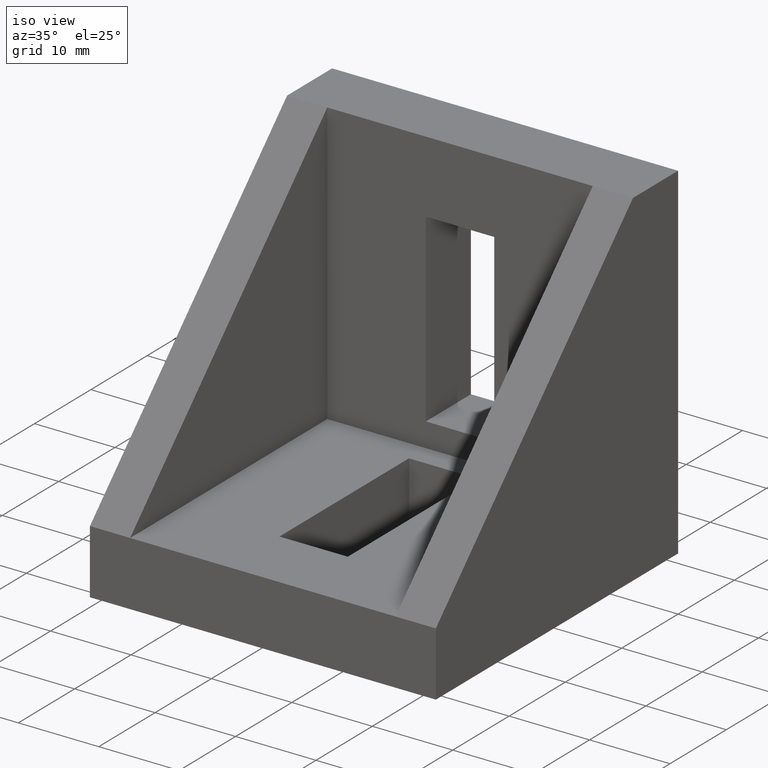
[diagram: clean part render]
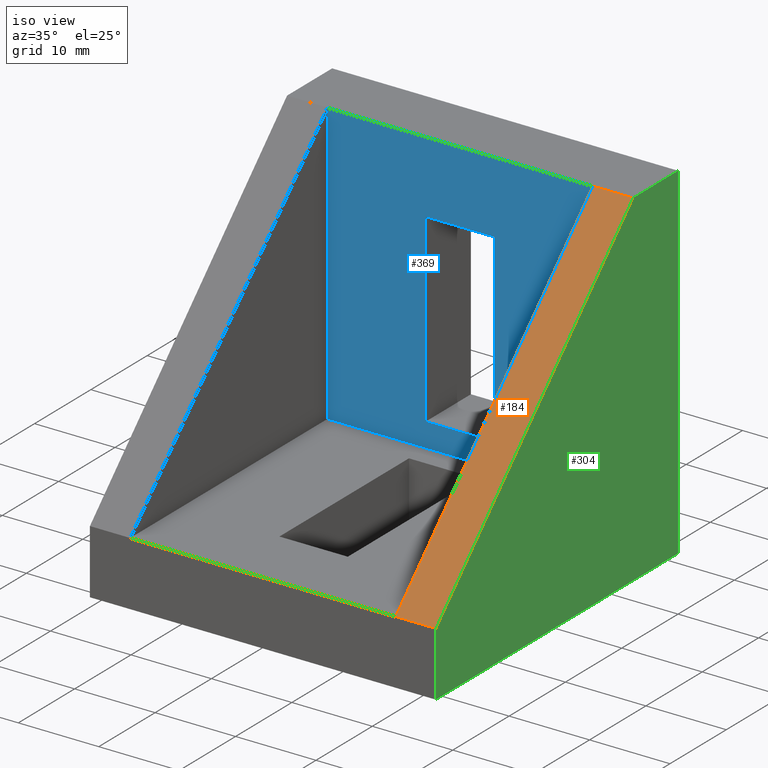
[diagram: same view with three faces highlighted in distinct colors, each labeled with its STEP entity id]
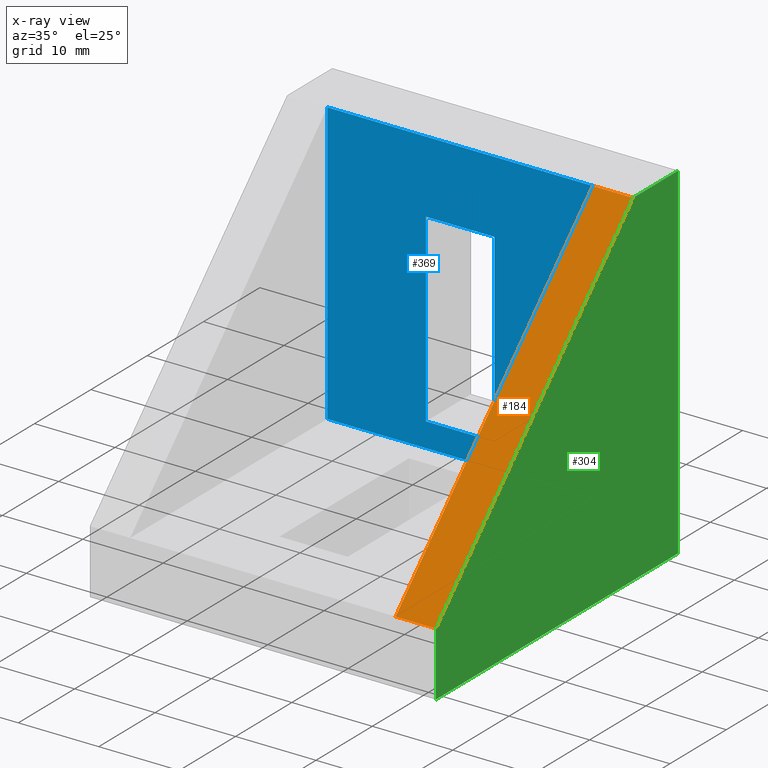
[diagram: x-ray of the same camera — body ghosted, the three highlighted faces saturated]
A machine part, iso view with three faces highlighted in distinct colors.
The next image is the same camera in x-ray (body ghosted, the three faces saturated) — at least one of them is partly hidden behind the body in this view.
Their STEP definitions:

[orange] entity #184 — the highlighted planar face has unit normal (-0, 0.7071, -0.7071).
#82=CARTESIAN_POINT('',(43.000000206304527,-42.999999999827978,7.999998335251010));
#83=VERTEX_POINT('',#82);
#90=CARTESIAN_POINT('',(37.999999859088902,-42.999999999827978,7.999998464298865));
#91=VERTEX_POINT('',#90);
#92=CARTESIAN_POINT('',(37.999999859088902,-42.999999999827978,7.999998464298865));
#93=DIRECTION('',(1.000000000000000,0.0,-0.000000025809569));
#94=VECTOR('',#93,5.000000347215627);
#95=LINE('',#92,#94);
#96=EDGE_CURVE('',#91,#83,#95,.T.);
#154=CARTESIAN_POINT('',(0.000000206476568,-42.999999999827985,7.999999445062490));
#155=DIRECTION('',(-0.000000018250122,0.707106781186547,-0.707106781186548));
#156=DIRECTION('',(0.000000018250122,0.707106781186548,0.707106781186547));
#157=AXIS2_PLACEMENT_3D('',#154,#155,#156);
#158=PLANE('',#157);
#159=CARTESIAN_POINT('',(43.000001109639449,-7.999999999968051,42.999998335110874));
#160=VERTEX_POINT('',#159);
#161=CARTESIAN_POINT('',(43.000000206304520,-42.999999999827985,7.999998335251014));
#162=DIRECTION('',(0.000000018250122,0.707106781186548,0.707106781186547));
#163=VECTOR('',#162,49.497474682860201);
#164=LINE('',#161,#163);
#165=EDGE_CURVE('',#83,#160,#164,.T.);
#166=ORIENTED_EDGE('',*,*,#165,.T.);
#167=CARTESIAN_POINT('',(38.000000762423824,-7.999999999968052,42.999998464158729));
#168=VERTEX_POINT('',#167);
#169=CARTESIAN_POINT('',(38.000000762423824,-7.999999999968052,42.999998464158729));
#170=DIRECTION('',(1.000000000000000,1.776357E-016,-0.000000025809569));
#171=VECTOR('',#170,5.000000347215627);
#172=LINE('',#169,#171);
#173=EDGE_CURVE('',#168,#160,#172,.T.);
#174=ORIENTED_EDGE('',*,*,#173,.F.);
#175=CARTESIAN_POINT('',(37.999999859088902,-42.999999999827978,7.999998464298865));
#176=DIRECTION('',(0.000000018250122,0.707106781186548,0.707106781186547));
#177=VECTOR('',#176,49.497474682860201);
#178=LINE('',#175,#177);
#179=EDGE_CURVE('',#91,#168,#178,.T.);
#180=ORIENTED_EDGE('',*,*,#179,.F.);
#181=ORIENTED_EDGE('',*,*,#96,.T.);
#182=EDGE_LOOP('',(#166,#174,#180,#181));
#183=FACE_OUTER_BOUND('',#182,.T.);
#184=ADVANCED_FACE('',(#183),#158,.F.);

[blue] entity #369 — the highlighted planar face has unit normal (0, 1, 0).
#129=CARTESIAN_POINT('',(5.000000762555938,-7.999999999968056,42.999999315874504));
#130=VERTEX_POINT('',#129);
#167=CARTESIAN_POINT('',(38.000000762423824,-7.999999999968052,42.999998464158729));
#168=VERTEX_POINT('',#167);
#191=CARTESIAN_POINT('',(5.000000762555938,-7.999999999968056,42.999999315874511));
#192=DIRECTION('',(1.000000000000000,1.076580E-016,-0.000000025809569));
#193=VECTOR('',#192,32.999999999867896);
#194=LINE('',#191,#193);
#195=EDGE_CURVE('',#130,#168,#194,.T.);
#305=CARTESIAN_POINT('',(4.999999859221006,-7.999999999968056,7.999999316014500));
#306=DIRECTION('',(0.0,1.0,0.0));
#307=DIRECTION('',(0.000000025809569,0.0,1.000000000000000));
#308=AXIS2_PLACEMENT_3D('',#305,#306,#307);
#309=PLANE('',#308);
#310=CARTESIAN_POINT('',(4.999999859221006,-7.999999999968056,7.999999316014500));
#311=VERTEX_POINT('',#310);
#312=CARTESIAN_POINT('',(37.999999859088895,-7.999999999968052,7.999998464298708));
#313=VERTEX_POINT('',#312);
#314=CARTESIAN_POINT('',(4.999999859221006,-7.999999999968056,7.999999316014500));
#315=DIRECTION('',(1.000000000000000,1.345725E-016,-0.000000025809569));
#316=VECTOR('',#315,32.999999999867896);
#317=LINE('',#314,#316);
#318=EDGE_CURVE('',#311,#313,#317,.T.);
#319=ORIENTED_EDGE('',*,*,#318,.T.);
#320=CARTESIAN_POINT('',(37.999999859088895,-7.999999999968052,7.999998464298713));
#321=DIRECTION('',(0.000000025809569,0.0,1.000000000000000));
#322=VECTOR('',#321,34.999999999860030);
#323=LINE('',#320,#322);
#324=EDGE_CURVE('',#313,#168,#323,.T.);
#325=ORIENTED_EDGE('',*,*,#324,.T.);
#326=ORIENTED_EDGE('',*,*,#195,.F.);
#327=CARTESIAN_POINT('',(4.999999859221005,-7.999999999968056,7.999999316014502));
#328=DIRECTION('',(0.000000025809569,0.0,1.000000000000000));
#329=VECTOR('',#328,34.999999999860016);
#330=LINE('',#327,#329);
#331=EDGE_CURVE('',#311,#130,#330,.T.);
#332=ORIENTED_EDGE('',*,*,#331,.F.);
#333=EDGE_LOOP('',(#319,#325,#326,#332));
#334=FACE_OUTER_BOUND('',#333,.T.);
#335=CARTESIAN_POINT('',(25.750000504377017,-7.999999999967879,33.999998780362084));
#336=VERTEX_POINT('',#335);
#337=CARTESIAN_POINT('',(25.749999910756920,-7.999999999967880,10.999998780453950));
#338=VERTEX_POINT('',#337);
#339=CARTESIAN_POINT('',(25.750000504377017,-7.999999999967879,33.999998780362084));
#340=DIRECTION('',(-0.000000025809569,0.0,-1.000000000000000));
#341=VECTOR('',#340,22.999999999908141);
#342=LINE('',#339,#341);
#343=EDGE_CURVE('',#336,#338,#342,.T.);
#344=ORIENTED_EDGE('',*,*,#343,.T.);
#345=CARTESIAN_POINT('',(17.249999910790972,-7.999999999967882,10.999998999835292));
#346=VERTEX_POINT('',#345);
#347=CARTESIAN_POINT('',(17.249999910790972,-7.999999999967882,10.999998999835292));
#348=DIRECTION('',(1.000000000000000,1.044916E-016,-0.000000025809570));
#349=VECTOR('',#348,8.499999999965951);
#350=LINE('',#347,#349);
#351=EDGE_CURVE('',#346,#338,#350,.T.);
#352=ORIENTED_EDGE('',*,*,#351,.F.);
#353=CARTESIAN_POINT('',(17.250000504411069,-7.999999999967881,33.999998999743426));
#354=VERTEX_POINT('',#353);
#355=CARTESIAN_POINT('',(17.250000504411069,-7.999999999967881,33.999998999743426));
#356=DIRECTION('',(-0.000000025809569,0.0,-1.000000000000000));
#357=VECTOR('',#356,22.999999999908141);
#358=LINE('',#355,#357);
#359=EDGE_CURVE('',#354,#346,#358,.T.);
#360=ORIENTED_EDGE('',*,*,#359,.F.);
#361=CARTESIAN_POINT('',(17.250000504411069,-7.999999999967881,33.999998999743426));
#362=DIRECTION('',(1.000000000000000,1.044916E-016,-0.000000025809570));
#363=VECTOR('',#362,8.499999999965951);
#364=LINE('',#361,#363);
#365=EDGE_CURVE('',#354,#336,#364,.T.);
#366=ORIENTED_EDGE('',*,*,#365,.T.);
#367=EDGE_LOOP('',(#344,#352,#360,#366));
#368=FACE_BOUND('',#367,.T.);
#369=ADVANCED_FACE('',(#334,#368),#309,.F.);

[green] entity #304 — the highlighted planar face has unit normal (-1, -0, 0).
#9=CARTESIAN_POINT('',(42.999999999827985,5.947641E-014,-0.000001109811490));
#10=VERTEX_POINT('',#9);
#17=CARTESIAN_POINT('',(42.999999999827992,-42.999999999827985,-0.000001109811481));
#18=VERTEX_POINT('',#17);
#19=CARTESIAN_POINT('',(42.999999999827985,6.394885E-014,-0.000001109811490));
#20=DIRECTION('',(0.0,-1.0,0.0));
#21=VECTOR('',#20,42.999999999828049);
#22=LINE('',#19,#21);
#23=EDGE_CURVE('',#10,#18,#22,.T.);
#82=CARTESIAN_POINT('',(43.000000206304527,-42.999999999827978,7.999998335251010));
#83=VERTEX_POINT('',#82);
#84=CARTESIAN_POINT('',(42.999999999827992,-42.999999999827985,-0.000001109811481));
#85=DIRECTION('',(0.000000025809569,0.0,1.000000000000000));
#86=VECTOR('',#85,7.999999445062485);
#87=LINE('',#84,#86);
#88=EDGE_CURVE('',#18,#83,#87,.T.);
#159=CARTESIAN_POINT('',(43.000001109639449,-7.999999999968051,42.999998335110874));
#160=VERTEX_POINT('',#159);
#161=CARTESIAN_POINT('',(43.000000206304520,-42.999999999827985,7.999998335251014));
#162=DIRECTION('',(0.000000018250122,0.707106781186548,0.707106781186547));
#163=VECTOR('',#162,49.497474682860201);
#164=LINE('',#161,#163);
#165=EDGE_CURVE('',#83,#160,#164,.T.);
#198=CARTESIAN_POINT('',(43.000001109639456,6.566211E-014,42.999998335110853));
#199=VERTEX_POINT('',#198);
#200=CARTESIAN_POINT('',(43.000001109639449,-7.999999999968051,42.999998335110874));
#201=DIRECTION('',(0.0,1.0,0.0));
#202=VECTOR('',#201,7.999999999968117);
#203=LINE('',#200,#202);
#204=EDGE_CURVE('',#160,#199,#203,.T.);
#235=CARTESIAN_POINT('',(43.000001109639456,6.566211E-014,42.999998335110845));
#236=DIRECTION('',(-0.000000025809569,-1.224647E-016,-1.000000000000000));
#237=VECTOR('',#236,42.999999444922352);
#238=LINE('',#235,#237);
#239=EDGE_CURVE('',#199,#10,#238,.T.);
#292=CARTESIAN_POINT('',(43.000001220620739,4.300004724509630,47.300003004129877));
#293=DIRECTION('',(-1.000000000000000,-1.224647E-016,0.000000025809569));
#294=DIRECTION('',(-0.000000025809569,-3.160761E-024,-1.000000000000000));
#295=AXIS2_PLACEMENT_3D('',#292,#293,#294);
#296=PLANE('',#295);
#297=ORIENTED_EDGE('',*,*,#239,.F.);
#298=ORIENTED_EDGE('',*,*,#204,.F.);
#299=ORIENTED_EDGE('',*,*,#165,.F.);
#300=ORIENTED_EDGE('',*,*,#88,.F.);
#301=ORIENTED_EDGE('',*,*,#23,.F.);
#302=EDGE_LOOP('',(#297,#298,#299,#300,#301));
#303=FACE_OUTER_BOUND('',#302,.T.);
#304=ADVANCED_FACE('',(#303),#296,.F.);